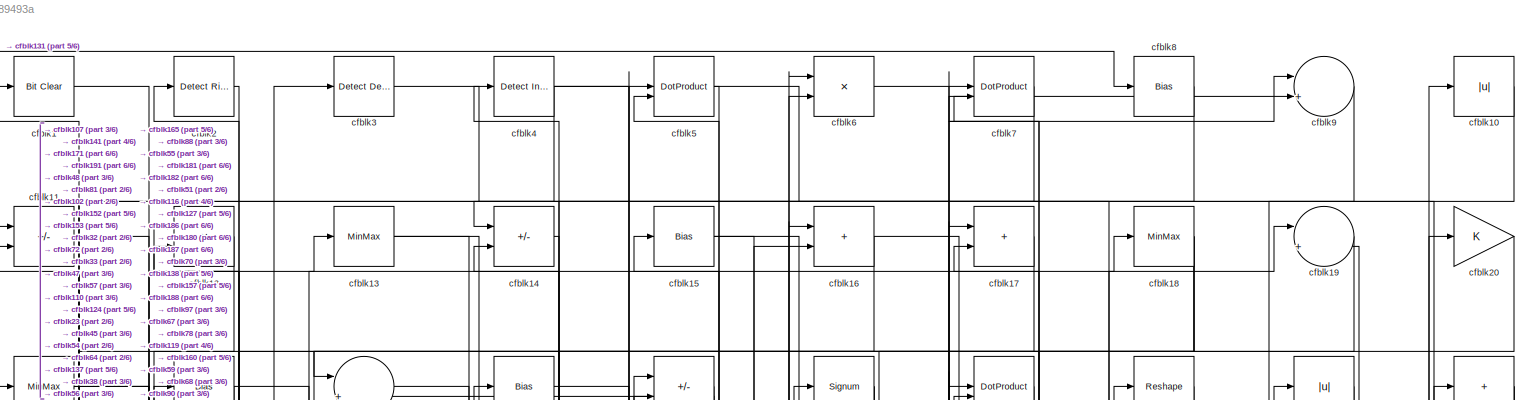
[diagram: root canvas - part 1/6, full width, top band]
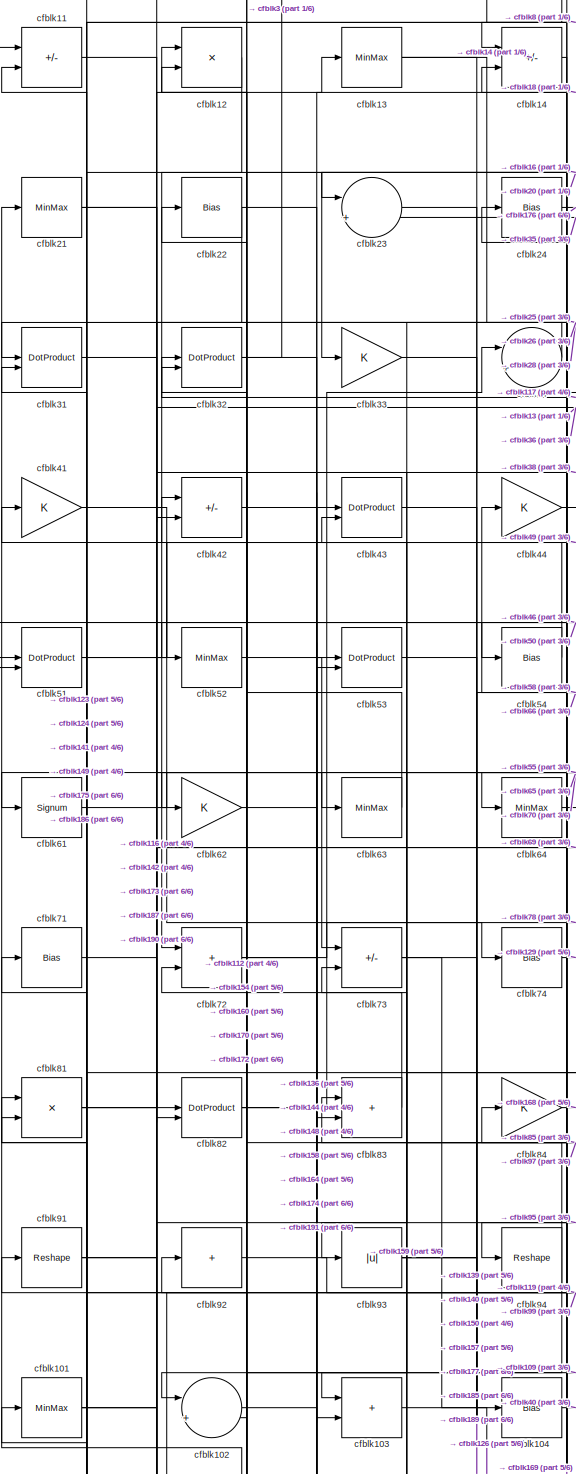
[diagram: root canvas - part 2/6, top left region]
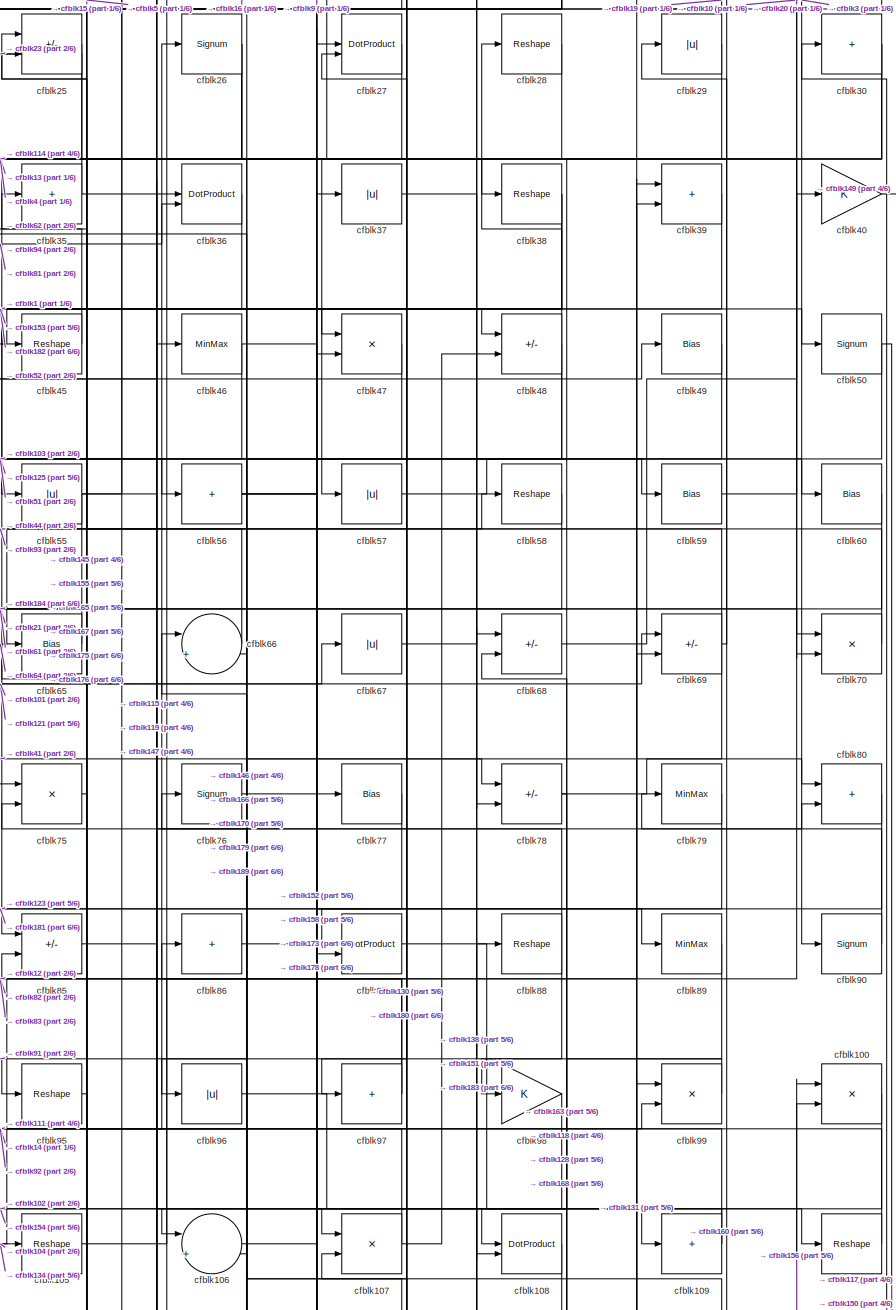
[diagram: root canvas - part 3/6, top right region]
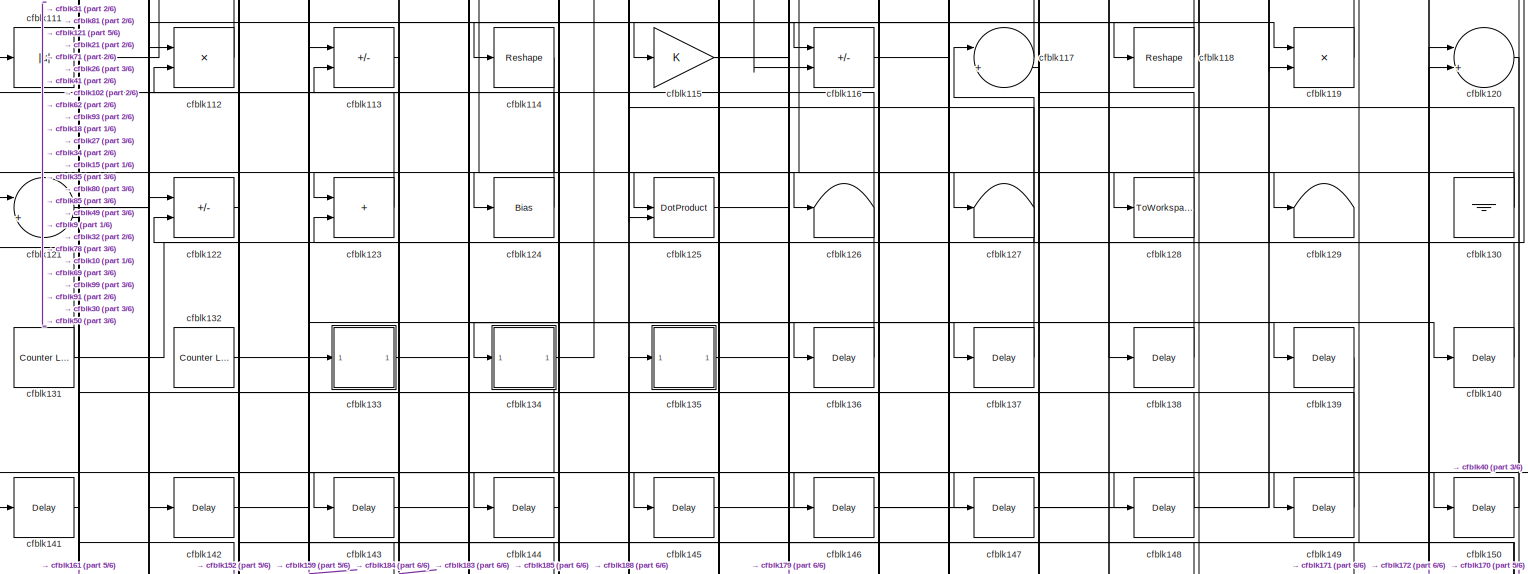
[diagram: root canvas - part 4/6, full width, middle band]
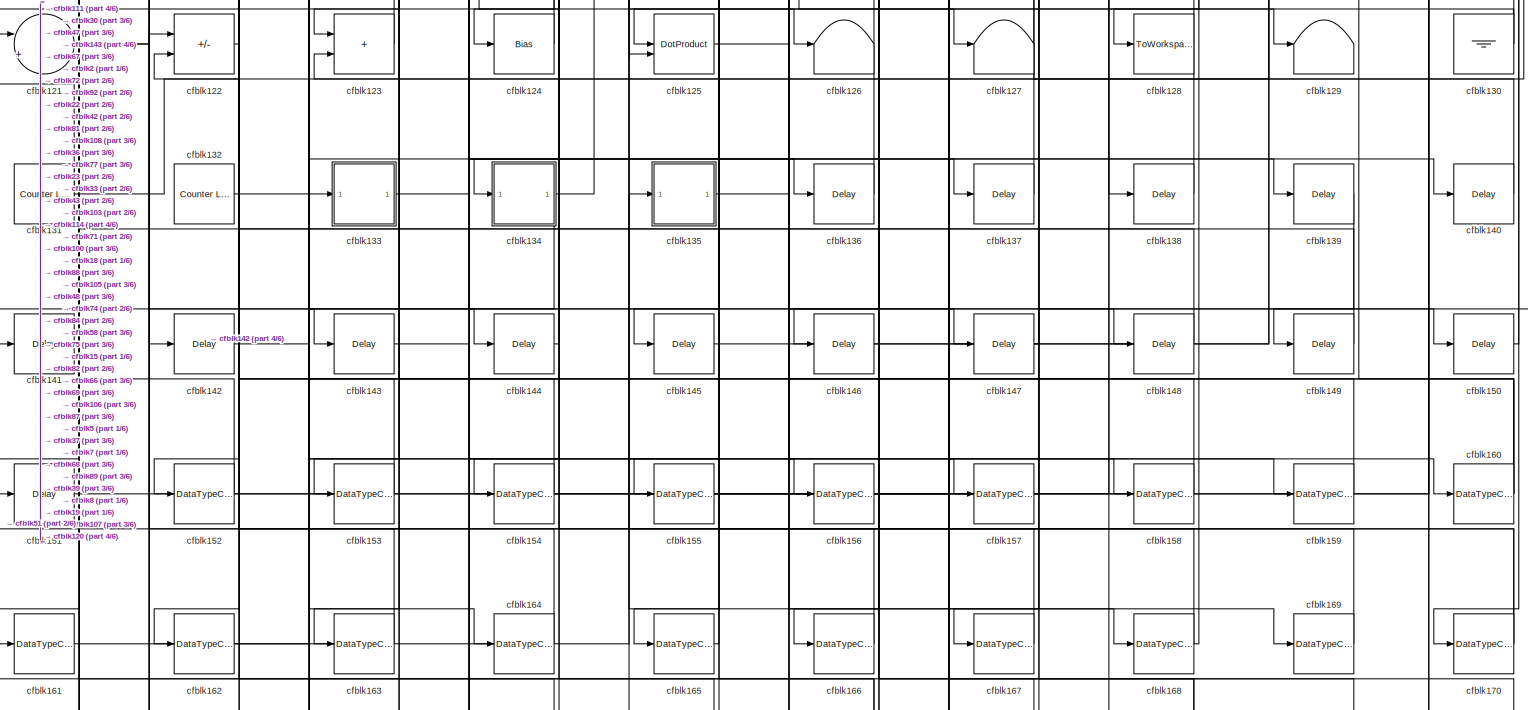
[diagram: root canvas - part 5/6, full width, bottom band]
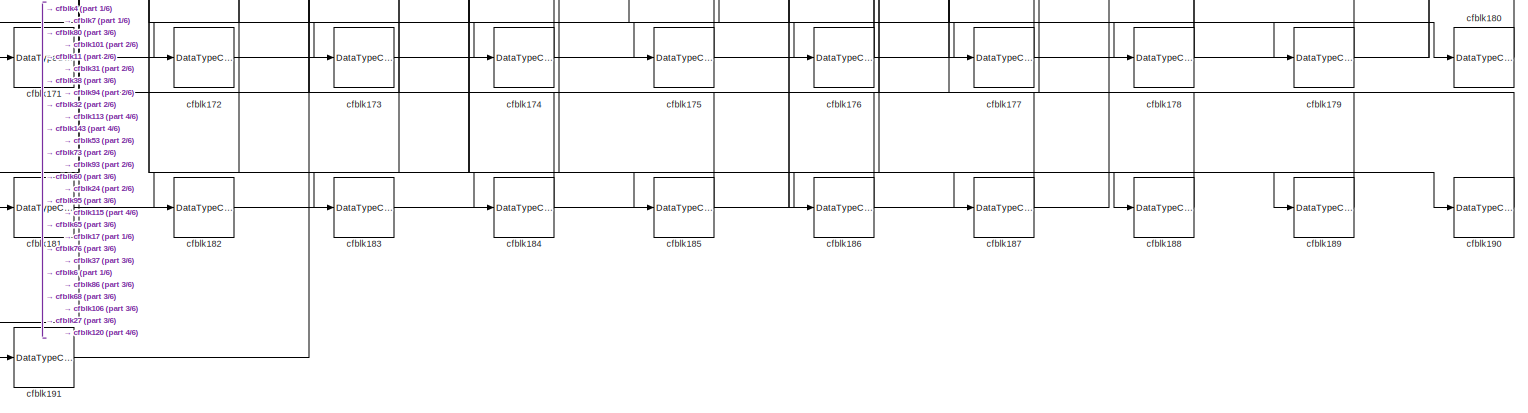
[diagram: root canvas - part 6/6, full width, bottom band]
MODEL slx_45f1ad89493a
KIND model
CONFIG AbsTol = auto
CONFIG EnableMultiTasking = off
CONFIG FixedStep = auto
CONFIG MaxStep = auto
CONFIG MinStep = auto
CONFIG RelTol = 1e-3
CONFIG SampleTimeConstraint = Unconstrained
CONFIG SolverName = VariableStepAuto
CONFIG StartTime = 0.0
CONFIG StopTime = 10.0
BLOCK [Reference] cfblk1  REF=simulink/Logic and Bit
Operations/Bit Clear
  LibrarySourceBlock = hdlsllib/Logic and Bit\nOperations/Bit Clear
  SourceBlock = simulink/Logic and Bit\nOperations/Bit Clear
  SourceType = Bit Clear
BLOCK [Abs] cfblk10
  SaturateOnIntegerOverflow = off
BLOCK [Product] cfblk100
  Inputs = */
  RndMeth = Zero
  SaturateOnIntegerOverflow = on
BLOCK [MinMax] cfblk101
BLOCK [Sum] cfblk102
  Inputs = |++
BLOCK [Sum] cfblk103
  IconShape = rectangular
BLOCK [Bias] cfblk104
  Bias = 0.0
  SaturateOnIntegerOverflow = off
BLOCK [Reshape] cfblk105
BLOCK [Sum] cfblk106
  Inputs = |++
BLOCK [Product] cfblk107
  Inputs = */
  RndMeth = Zero
  SaturateOnIntegerOverflow = on
BLOCK [DotProduct] cfblk108
  OutDataTypeStr = Inherit: Inherit via internal rule
BLOCK [Sum] cfblk109
  IconShape = rectangular
  Inputs = +
BLOCK [Sum] cfblk11
  IconShape = rectangular
  Inputs = +-
BLOCK [Reshape] cfblk110
BLOCK [Abs] cfblk111
  SaturateOnIntegerOverflow = off
BLOCK [Product] cfblk112
  Inputs = */
  RndMeth = Zero
  SaturateOnIntegerOverflow = on
BLOCK [Sum] cfblk113
  IconShape = rectangular
  Inputs = +-
BLOCK [Reshape] cfblk114
BLOCK [Gain] cfblk115
BLOCK [Sum] cfblk116
  IconShape = rectangular
  Inputs = +-
BLOCK [Sum] cfblk117
  Inputs = |++
BLOCK [Reshape] cfblk118
BLOCK [Product] cfblk119
  Inputs = */
  RndMeth = Zero
  SaturateOnIntegerOverflow = on
BLOCK [Product] cfblk12
  Inputs = */
  RndMeth = Zero
  SaturateOnIntegerOverflow = on
BLOCK [Sum] cfblk120
  Inputs = |++
BLOCK [Sum] cfblk121
  Inputs = |++
BLOCK [Sum] cfblk122
  IconShape = rectangular
  Inputs = +-
BLOCK [Sum] cfblk123
  IconShape = rectangular
BLOCK [Bias] cfblk124
  Bias = 0.0
  SaturateOnIntegerOverflow = off
BLOCK [DotProduct] cfblk125
  OutDataTypeStr = Inherit: Inherit via internal rule
BLOCK [Terminator] cfblk126
BLOCK [Terminator] cfblk127
BLOCK [ToWorkspace] cfblk128
  MaxDataPoints = inf
  SampleTime = -1
  SaveFormat = Timeseries
  VariableName = simout
BLOCK [Terminator] cfblk129
BLOCK [MinMax] cfblk13
BLOCK [Ground] cfblk130
BLOCK [Reference] cfblk131  REF=hdlsllib/Sources/Counter
Limited
  SourceBlock = hdlsllib/Sources/Counter\nLimited
  SourceType = Counter Limited
BLOCK [Reference] cfblk132  REF=hdlsllib/Sources/Counter
Limited
  SourceBlock = hdlsllib/Sources/Counter\nLimited
  SourceType = Counter Limited
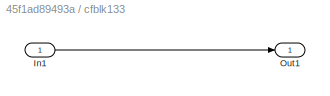
BLOCK [SubSystem] cfblk133
  LibrarySourceBlock = hdlsllib/Ports &\nSubsystems/Subsystem
BLOCK [Inport] cfblk133/In1
BLOCK [Outport] cfblk133/Out1
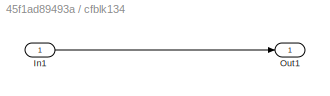
BLOCK [SubSystem] cfblk134
  LibrarySourceBlock = hdlsllib/Ports &\nSubsystems/Subsystem
BLOCK [Inport] cfblk134/In1
BLOCK [Outport] cfblk134/Out1
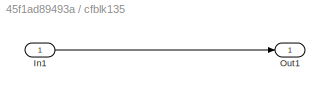
BLOCK [SubSystem] cfblk135
  LibrarySourceBlock = hdlsllib/Ports &\nSubsystems/Subsystem
BLOCK [Inport] cfblk135/In1
BLOCK [Outport] cfblk135/Out1
BLOCK [Delay] cfblk136
  InputPortMap = u0
  SampleTime = 1
BLOCK [Delay] cfblk137
  InputPortMap = u0
  SampleTime = 1
BLOCK [Delay] cfblk138
  InputPortMap = u0
  SampleTime = 1
BLOCK [Delay] cfblk139
  InputPortMap = u0
  SampleTime = 1
BLOCK [Sum] cfblk14
  IconShape = rectangular
  Inputs = +-
BLOCK [Delay] cfblk140
  InputPortMap = u0
  SampleTime = 1
BLOCK [Delay] cfblk141
  InputPortMap = u0
  SampleTime = 1
BLOCK [Delay] cfblk142
  InputPortMap = u0
  SampleTime = 1
BLOCK [Delay] cfblk143
  InputPortMap = u0
  SampleTime = 1
BLOCK [Delay] cfblk144
  InputPortMap = u0
  SampleTime = 1
BLOCK [Delay] cfblk145
  InputPortMap = u0
  SampleTime = 1
BLOCK [Delay] cfblk146
  InputPortMap = u0
  SampleTime = 1
BLOCK [Delay] cfblk147
  InputPortMap = u0
  SampleTime = 1
BLOCK [Delay] cfblk148
  InputPortMap = u0
  SampleTime = 1
BLOCK [Delay] cfblk149
  InputPortMap = u0
  SampleTime = 1
BLOCK [Bias] cfblk15
  Bias = 0.0
  SaturateOnIntegerOverflow = off
BLOCK [Delay] cfblk150
  InputPortMap = u0
  SampleTime = 1
BLOCK [Delay] cfblk151
  InputPortMap = u0
  SampleTime = 1
BLOCK [DataTypeConversion] cfblk152
  RndMeth = Floor
  SaturateOnIntegerOverflow = off
BLOCK [DataTypeConversion] cfblk153
  OutDataTypeStr = uint8
  RndMeth = Floor
  SaturateOnIntegerOverflow = off
BLOCK [DataTypeConversion] cfblk154
  RndMeth = Floor
  SaturateOnIntegerOverflow = off
BLOCK [DataTypeConversion] cfblk155
  OutDataTypeStr = uint8
  RndMeth = Floor
  SaturateOnIntegerOverflow = off
BLOCK [DataTypeConversion] cfblk156
  OutDataTypeStr = uint8
  RndMeth = Floor
  SaturateOnIntegerOverflow = off
BLOCK [DataTypeConversion] cfblk157
  OutDataTypeStr = uint8
  RndMeth = Floor
  SaturateOnIntegerOverflow = off
BLOCK [DataTypeConversion] cfblk158
  OutDataTypeStr = uint8
  RndMeth = Floor
  SaturateOnIntegerOverflow = off
BLOCK [DataTypeConversion] cfblk159
  OutDataTypeStr = uint8
  RndMeth = Floor
  SaturateOnIntegerOverflow = off
BLOCK [Sum] cfblk16
  IconShape = rectangular
BLOCK [DataTypeConversion] cfblk160
  RndMeth = Floor
  SaturateOnIntegerOverflow = off
BLOCK [DataTypeConversion] cfblk161
  OutDataTypeStr = uint8
  RndMeth = Floor
  SaturateOnIntegerOverflow = off
BLOCK [DataTypeConversion] cfblk162
  OutDataTypeStr = uint8
  RndMeth = Floor
  SaturateOnIntegerOverflow = off
BLOCK [DataTypeConversion] cfblk163
  OutDataTypeStr = uint8
  RndMeth = Floor
  SaturateOnIntegerOverflow = off
BLOCK [DataTypeConversion] cfblk164
  OutDataTypeStr = uint8
  RndMeth = Floor
  SaturateOnIntegerOverflow = off
BLOCK [DataTypeConversion] cfblk165
  OutDataTypeStr = uint8
  RndMeth = Floor
  SaturateOnIntegerOverflow = off
BLOCK [DataTypeConversion] cfblk166
  OutDataTypeStr = uint8
  RndMeth = Floor
  SaturateOnIntegerOverflow = off
BLOCK [DataTypeConversion] cfblk167
  OutDataTypeStr = uint8
  RndMeth = Floor
  SaturateOnIntegerOverflow = off
BLOCK [DataTypeConversion] cfblk168
  RndMeth = Floor
  SaturateOnIntegerOverflow = off
BLOCK [DataTypeConversion] cfblk169
  OutDataTypeStr = uint8
  RndMeth = Floor
  SaturateOnIntegerOverflow = off
BLOCK [Sum] cfblk17
  IconShape = rectangular
BLOCK [DataTypeConversion] cfblk170
  RndMeth = Floor
  SaturateOnIntegerOverflow = off
BLOCK [DataTypeConversion] cfblk171
  OutDataTypeStr = uint8
  RndMeth = Floor
  SaturateOnIntegerOverflow = off
BLOCK [DataTypeConversion] cfblk172
  OutDataTypeStr = uint8
  RndMeth = Floor
  SaturateOnIntegerOverflow = off
BLOCK [DataTypeConversion] cfblk173
  OutDataTypeStr = uint8
  RndMeth = Floor
  SaturateOnIntegerOverflow = off
BLOCK [DataTypeConversion] cfblk174
  OutDataTypeStr = uint8
  RndMeth = Floor
  SaturateOnIntegerOverflow = off
BLOCK [DataTypeConversion] cfblk175
  OutDataTypeStr = uint8
  RndMeth = Floor
  SaturateOnIntegerOverflow = off
BLOCK [DataTypeConversion] cfblk176
  RndMeth = Floor
  SaturateOnIntegerOverflow = off
BLOCK [DataTypeConversion] cfblk177
  OutDataTypeStr = uint8
  RndMeth = Floor
  SaturateOnIntegerOverflow = off
BLOCK [DataTypeConversion] cfblk178
  RndMeth = Floor
  SaturateOnIntegerOverflow = off
BLOCK [DataTypeConversion] cfblk179
  OutDataTypeStr = uint8
  RndMeth = Floor
  SaturateOnIntegerOverflow = off
BLOCK [MinMax] cfblk18
BLOCK [DataTypeConversion] cfblk180
  OutDataTypeStr = uint8
  RndMeth = Floor
  SaturateOnIntegerOverflow = off
BLOCK [DataTypeConversion] cfblk181
  OutDataTypeStr = uint8
  RndMeth = Floor
  SaturateOnIntegerOverflow = off
BLOCK [DataTypeConversion] cfblk182
  OutDataTypeStr = uint8
  RndMeth = Floor
  SaturateOnIntegerOverflow = off
BLOCK [DataTypeConversion] cfblk183
  OutDataTypeStr = uint8
  RndMeth = Floor
  SaturateOnIntegerOverflow = off
BLOCK [DataTypeConversion] cfblk184
  OutDataTypeStr = uint8
  RndMeth = Floor
  SaturateOnIntegerOverflow = off
BLOCK [DataTypeConversion] cfblk185
  OutDataTypeStr = uint8
  RndMeth = Floor
  SaturateOnIntegerOverflow = off
BLOCK [DataTypeConversion] cfblk186
  OutDataTypeStr = uint8
  RndMeth = Floor
  SaturateOnIntegerOverflow = off
BLOCK [DataTypeConversion] cfblk187
  OutDataTypeStr = uint8
  RndMeth = Floor
  SaturateOnIntegerOverflow = off
BLOCK [DataTypeConversion] cfblk188
  OutDataTypeStr = uint8
  RndMeth = Floor
  SaturateOnIntegerOverflow = off
BLOCK [DataTypeConversion] cfblk189
  OutDataTypeStr = uint8
  RndMeth = Floor
  SaturateOnIntegerOverflow = off
BLOCK [Sum] cfblk19
  Inputs = |++
BLOCK [DataTypeConversion] cfblk190
  OutDataTypeStr = uint8
  RndMeth = Floor
  SaturateOnIntegerOverflow = off
BLOCK [DataTypeConversion] cfblk191
  OutDataTypeStr = uint8
  RndMeth = Floor
  SaturateOnIntegerOverflow = off
BLOCK [Reference] cfblk2  REF=hdlsllib/Logic and Bit
Operations/Detect Rise
Positive
  SourceBlock = hdlsllib/Logic and Bit\nOperations/Detect Rise\nPositive
  SourceType = Detect Rise Positive
BLOCK [Gain] cfblk20
BLOCK [MinMax] cfblk21
BLOCK [Bias] cfblk22
  Bias = 0.0
  SaturateOnIntegerOverflow = off
BLOCK [Sum] cfblk23
  Inputs = |++
BLOCK [Bias] cfblk24
  Bias = 0.0
  SaturateOnIntegerOverflow = off
BLOCK [Sum] cfblk25
  IconShape = rectangular
  Inputs = +-
BLOCK [Signum] cfblk26
BLOCK [DotProduct] cfblk27
  OutDataTypeStr = Inherit: Inherit via internal rule
BLOCK [Reshape] cfblk28
BLOCK [Abs] cfblk29
  SaturateOnIntegerOverflow = off
BLOCK [Reference] cfblk3  REF=simulink/Logic and Bit
Operations/Detect
Decrease
  LibrarySourceBlock = hdlsllib/Logic and Bit\nOperations/Detect\nDecrease
  SourceBlock = simulink/Logic and Bit\nOperations/Detect\nDecrease
  SourceType = Detect Decrease
BLOCK [Sum] cfblk30
  IconShape = rectangular
  Inputs = +
BLOCK [DotProduct] cfblk31
  OutDataTypeStr = Inherit: Inherit via internal rule
BLOCK [DotProduct] cfblk32
  OutDataTypeStr = Inherit: Inherit via internal rule
BLOCK [Gain] cfblk33
BLOCK [Sum] cfblk34
  Inputs = |++
BLOCK [Sum] cfblk35
  IconShape = rectangular
  Inputs = +
BLOCK [DotProduct] cfblk36
  OutDataTypeStr = Inherit: Inherit via internal rule
BLOCK [Abs] cfblk37
  SaturateOnIntegerOverflow = off
BLOCK [Reshape] cfblk38
BLOCK [Sum] cfblk39
  IconShape = rectangular
BLOCK [Reference] cfblk4  REF=simulink/Logic and Bit
Operations/Detect
Increase
  LibrarySourceBlock = hdlsllib/Logic and Bit\nOperations/Detect\nIncrease
  SourceBlock = simulink/Logic and Bit\nOperations/Detect\nIncrease
  SourceType = Detect Increase
BLOCK [Gain] cfblk40
BLOCK [Gain] cfblk41
BLOCK [Sum] cfblk42
  IconShape = rectangular
  Inputs = +-
BLOCK [DotProduct] cfblk43
  OutDataTypeStr = Inherit: Inherit via internal rule
BLOCK [Gain] cfblk44
BLOCK [Reshape] cfblk45
BLOCK [MinMax] cfblk46
BLOCK [Product] cfblk47
  Inputs = */
  RndMeth = Zero
  SaturateOnIntegerOverflow = on
BLOCK [Sum] cfblk48
  IconShape = rectangular
  Inputs = +-
BLOCK [Bias] cfblk49
  Bias = 0.0
  SaturateOnIntegerOverflow = off
BLOCK [DotProduct] cfblk5
  OutDataTypeStr = Inherit: Inherit via internal rule
BLOCK [Signum] cfblk50
BLOCK [DotProduct] cfblk51
  OutDataTypeStr = Inherit: Inherit via internal rule
BLOCK [MinMax] cfblk52
BLOCK [DotProduct] cfblk53
  OutDataTypeStr = Inherit: Inherit via internal rule
BLOCK [Bias] cfblk54
  Bias = 0.0
  SaturateOnIntegerOverflow = off
BLOCK [Abs] cfblk55
  SaturateOnIntegerOverflow = off
BLOCK [Sum] cfblk56
  IconShape = rectangular
  Inputs = +
BLOCK [Abs] cfblk57
  SaturateOnIntegerOverflow = off
BLOCK [Reshape] cfblk58
BLOCK [Bias] cfblk59
  Bias = 0.0
  SaturateOnIntegerOverflow = off
BLOCK [Product] cfblk6
  Inputs = */
  RndMeth = Zero
  SaturateOnIntegerOverflow = on
BLOCK [Bias] cfblk60
  Bias = 0.0
  SaturateOnIntegerOverflow = off
BLOCK [Signum] cfblk61
BLOCK [Gain] cfblk62
BLOCK [MinMax] cfblk63
BLOCK [MinMax] cfblk64
BLOCK [Bias] cfblk65
  Bias = 0.0
  SaturateOnIntegerOverflow = off
BLOCK [Sum] cfblk66
  Inputs = |++
BLOCK [Abs] cfblk67
  SaturateOnIntegerOverflow = off
BLOCK [Sum] cfblk68
  IconShape = rectangular
  Inputs = +-
BLOCK [Sum] cfblk69
  IconShape = rectangular
  Inputs = +-
BLOCK [DotProduct] cfblk7
  OutDataTypeStr = Inherit: Inherit via internal rule
BLOCK [Product] cfblk70
  Inputs = */
  RndMeth = Zero
  SaturateOnIntegerOverflow = on
BLOCK [Bias] cfblk71
  Bias = 0.0
  SaturateOnIntegerOverflow = off
BLOCK [Sum] cfblk72
  IconShape = rectangular
BLOCK [Sum] cfblk73
  IconShape = rectangular
  Inputs = +-
BLOCK [Bias] cfblk74
  Bias = 0.0
  SaturateOnIntegerOverflow = off
BLOCK [Product] cfblk75
  Inputs = */
  RndMeth = Zero
  SaturateOnIntegerOverflow = on
BLOCK [Signum] cfblk76
BLOCK [Bias] cfblk77
  Bias = 0.0
  SaturateOnIntegerOverflow = off
BLOCK [Sum] cfblk78
  IconShape = rectangular
  Inputs = +-
BLOCK [MinMax] cfblk79
BLOCK [Bias] cfblk8
  Bias = 0.0
  SaturateOnIntegerOverflow = off
BLOCK [Sum] cfblk80
  IconShape = rectangular
BLOCK [Product] cfblk81
  Inputs = */
  RndMeth = Zero
  SaturateOnIntegerOverflow = on
BLOCK [DotProduct] cfblk82
  OutDataTypeStr = Inherit: Inherit via internal rule
BLOCK [Sum] cfblk83
  IconShape = rectangular
BLOCK [Gain] cfblk84
BLOCK [Sum] cfblk85
  IconShape = rectangular
  Inputs = +-
BLOCK [Sum] cfblk86
  IconShape = rectangular
  Inputs = +
BLOCK [DotProduct] cfblk87
  OutDataTypeStr = Inherit: Inherit via internal rule
BLOCK [Reshape] cfblk88
BLOCK [MinMax] cfblk89
BLOCK [Sum] cfblk9
  Inputs = |++
BLOCK [Signum] cfblk90
BLOCK [Reshape] cfblk91
BLOCK [Sum] cfblk92
  IconShape = rectangular
  Inputs = +
BLOCK [Abs] cfblk93
  SaturateOnIntegerOverflow = off
BLOCK [Reshape] cfblk94
BLOCK [Reshape] cfblk95
BLOCK [Abs] cfblk96
  SaturateOnIntegerOverflow = off
BLOCK [Sum] cfblk97
  IconShape = rectangular
  Inputs = +
BLOCK [Gain] cfblk98
BLOCK [Product] cfblk99
  Inputs = */
  RndMeth = Zero
  SaturateOnIntegerOverflow = on
LINE cfblk100:1 -> cfblk154:1
NET cfblk101:1 -> cfblk190:1, cfblk69:1
LINE cfblk102:1 -> cfblk148:1
LINE cfblk103:1 -> cfblk126:1
LINE cfblk104:1 -> cfblk40:1
LINE cfblk105:1 -> cfblk39:1
LINE cfblk106:1 -> cfblk158:1
NET cfblk107:1 -> cfblk1:1, cfblk48:2
LINE cfblk108:1 -> cfblk163:1
NET cfblk109:1 -> cfblk102:1, cfblk25:1
LINE cfblk10:1 -> cfblk119:2
LINE cfblk110:1 -> cfblk14:2
LINE cfblk111:1 -> cfblk26:1
LINE cfblk112:1 -> cfblk41:1
LINE cfblk113:1 -> cfblk183:1
LINE cfblk114:1 -> cfblk161:1
NET cfblk115:1 -> cfblk179:1, cfblk80:2
LINE cfblk116:1 -> cfblk9:1
LINE cfblk117:1 -> cfblk32:1
LINE cfblk118:1 -> cfblk115:1
LINE cfblk119:1 -> cfblk91:1
LINE cfblk11:1 -> cfblk173:1
LINE cfblk120:1 -> cfblk170:1
NET cfblk121:1 -> cfblk143:1, cfblk67:1
LINE cfblk122:1 -> cfblk162:1
LINE cfblk123:1 -> cfblk81:1
LINE cfblk124:1 -> cfblk71:1
LINE cfblk125:1 -> cfblk169:1
LINE cfblk12:1 -> cfblk72:1
NET cfblk130:1 -> cfblk107:2, cfblk125:1
NET cfblk131:1 -> cfblk39:2, cfblk8:1
LINE cfblk132:1 -> cfblk156:1
LINE cfblk133/In1:1 -> cfblk133/Out1:1
LINE cfblk133:1 -> cfblk137:1
LINE cfblk134/In1:1 -> cfblk134/Out1:1
NET cfblk134:1 -> cfblk105:1, cfblk151:1
LINE cfblk135/In1:1 -> cfblk135/Out1:1
LINE cfblk135:1 -> cfblk160:1
LINE cfblk136:1 -> cfblk82:1
LINE cfblk137:1 -> cfblk5:1
LINE cfblk138:1 -> cfblk7:1
LINE cfblk139:1 -> cfblk167:1
NET cfblk13:1 -> cfblk47:1, cfblk57:1
LINE cfblk140:1 -> cfblk123:2
LINE cfblk141:1 -> cfblk81:2
LINE cfblk142:1 -> cfblk159:1
LINE cfblk143:1 -> cfblk188:1
LINE cfblk144:1 -> cfblk34:2
LINE cfblk145:1 -> cfblk69:2
LINE cfblk146:1 -> cfblk99:1
LINE cfblk147:1 -> cfblk117:2
LINE cfblk148:1 -> cfblk112:2
LINE cfblk149:1 -> cfblk31:2
LINE cfblk14:1 -> cfblk64:1
LINE cfblk150:1 -> cfblk30:1
LINE cfblk151:1 -> cfblk88:1
NET cfblk152:1 -> cfblk111:1, cfblk47:2
LINE cfblk153:1 -> cfblk2:1
NET cfblk154:1 -> cfblk72:2, cfblk87:2
LINE cfblk155:1 -> cfblk100:1
LINE cfblk156:1 -> cfblk100:2
LINE cfblk157:1 -> cfblk7:2
LINE cfblk158:1 -> cfblk43:1
LINE cfblk159:1 -> cfblk43:2
NET cfblk15:1 -> cfblk116:2, cfblk127:1
NET cfblk160:1 -> cfblk19:2, cfblk36:1, cfblk92:1
LINE cfblk161:1 -> cfblk135:1
LINE cfblk162:1 -> cfblk133:1
LINE cfblk163:1 -> cfblk122:1
LINE cfblk164:1 -> cfblk122:2
LINE cfblk165:1 -> cfblk5:2
LINE cfblk166:1 -> cfblk75:1
LINE cfblk167:1 -> cfblk75:2
NET cfblk168:1 -> cfblk51:1, cfblk68:2
LINE cfblk169:1 -> cfblk84:1
NET cfblk16:1 -> cfblk102:2, cfblk70:1
NET cfblk170:1 -> cfblk22:1, cfblk66:1
LINE cfblk171:1 -> cfblk120:1
LINE cfblk172:1 -> cfblk120:2
LINE cfblk173:1 -> cfblk37:1
LINE cfblk174:1 -> cfblk11:1
LINE cfblk175:1 -> cfblk11:2
NET cfblk176:1 -> cfblk32:2, cfblk65:1
LINE cfblk177:1 -> cfblk24:1
NET cfblk178:1 -> cfblk106:2, cfblk27:1
LINE cfblk179:1 -> cfblk86:1
LINE cfblk17:1 -> cfblk186:1
LINE cfblk180:1 -> cfblk27:2
LINE cfblk181:1 -> cfblk6:1
LINE cfblk182:1 -> cfblk6:2
LINE cfblk183:1 -> cfblk68:1
LINE cfblk184:1 -> cfblk113:1
LINE cfblk185:1 -> cfblk113:2
LINE cfblk186:1 -> cfblk101:1
LINE cfblk187:1 -> cfblk17:1
LINE cfblk188:1 -> cfblk17:2
LINE cfblk189:1 -> cfblk76:1
NET cfblk18:1 -> cfblk124:1, cfblk141:1, cfblk23:1
LINE cfblk190:1 -> cfblk53:1
LINE cfblk191:1 -> cfblk53:2
LINE cfblk19:1 -> cfblk97:1
LINE cfblk1:1 -> cfblk48:1
LINE cfblk20:1 -> cfblk33:1
NET cfblk21:1 -> cfblk116:1, cfblk70:2
NET cfblk22:1 -> cfblk136:1, cfblk42:2
LINE cfblk23:1 -> cfblk140:1
LINE cfblk24:1 -> cfblk176:1
LINE cfblk25:1 -> cfblk94:1
NET cfblk26:1 -> cfblk103:1, cfblk145:1, cfblk62:1
LINE cfblk27:1 -> cfblk114:1
LINE cfblk28:1 -> cfblk82:2
LINE cfblk29:1 -> cfblk108:1
LINE cfblk2:1 -> cfblk152:1
NET cfblk30:1 -> cfblk121:2, cfblk55:1, cfblk96:1
LINE cfblk31:1 -> cfblk187:1
NET cfblk32:1 -> cfblk174:1, cfblk3:1
LINE cfblk33:1 -> cfblk139:1
LINE cfblk34:1 -> cfblk31:1
NET cfblk35:1 -> cfblk147:1, cfblk23:2
LINE cfblk36:1 -> cfblk153:1
LINE cfblk37:1 -> cfblk138:1
NET cfblk38:1 -> cfblk182:1, cfblk52:1, cfblk83:2
LINE cfblk39:1 -> cfblk85:1
LINE cfblk3:1 -> cfblk90:1
LINE cfblk40:1 -> cfblk149:1
LINE cfblk41:1 -> cfblk78:1
LINE cfblk42:1 -> cfblk164:1
LINE cfblk43:1 -> cfblk157:1
LINE cfblk44:1 -> cfblk50:1
LINE cfblk45:1 -> cfblk4:1
NET cfblk46:1 -> cfblk51:2, cfblk77:1
LINE cfblk47:1 -> cfblk121:1
NET cfblk48:1 -> cfblk125:2, cfblk28:1, cfblk66:2
LINE cfblk49:1 -> cfblk146:1
NET cfblk4:1 -> cfblk191:1, cfblk38:1, cfblk56:1
NET cfblk50:1 -> cfblk103:2, cfblk117:1
NET cfblk51:1 -> cfblk16:1, cfblk49:1
LINE cfblk52:1 -> cfblk73:1
LINE cfblk53:1 -> cfblk189:1
LINE cfblk54:1 -> cfblk21:1
NET cfblk55:1 -> cfblk107:1, cfblk16:2, cfblk93:1
NET cfblk56:1 -> cfblk108:2, cfblk59:1, cfblk9:2
LINE cfblk57:1 -> cfblk60:1
LINE cfblk58:1 -> cfblk155:1
LINE cfblk59:1 -> cfblk10:1
NET cfblk5:1 -> cfblk45:1, cfblk78:2
LINE cfblk60:1 -> cfblk184:1
LINE cfblk61:1 -> cfblk63:1
LINE cfblk62:1 -> cfblk144:1
LINE cfblk63:1 -> cfblk12:1
LINE cfblk64:1 -> cfblk46:1
LINE cfblk65:1 -> cfblk61:1
LINE cfblk66:1 -> cfblk44:1
LINE cfblk67:1 -> cfblk19:1
LINE cfblk68:1 -> cfblk20:1
NET cfblk69:1 -> cfblk166:1, cfblk25:2, cfblk29:1
LINE cfblk6:1 -> cfblk180:1
LINE cfblk70:1 -> cfblk35:1
LINE cfblk71:1 -> cfblk142:1
NET cfblk72:1 -> cfblk18:1, cfblk74:1
NET cfblk73:1 -> cfblk104:1, cfblk177:1
LINE cfblk74:1 -> cfblk129:1
LINE cfblk75:1 -> cfblk165:1
LINE cfblk76:1 -> cfblk89:1
LINE cfblk77:1 -> cfblk123:1
NET cfblk78:1 -> cfblk118:1, cfblk80:1
LINE cfblk79:1 -> cfblk87:1
LINE cfblk7:1 -> cfblk171:1
LINE cfblk80:1 -> cfblk181:1
NET cfblk81:1 -> cfblk13:1, cfblk36:2
NET cfblk82:1 -> cfblk34:1, cfblk85:2
LINE cfblk83:1 -> cfblk42:1
LINE cfblk84:1 -> cfblk168:1
LINE cfblk85:1 -> cfblk119:1
LINE cfblk86:1 -> cfblk178:1
LINE cfblk87:1 -> cfblk110:1
NET cfblk88:1 -> cfblk134:1, cfblk15:1
LINE cfblk89:1 -> cfblk128:1
LINE cfblk8:1 -> cfblk54:1
LINE cfblk90:1 -> cfblk79:1
NET cfblk91:1 -> cfblk112:1, cfblk95:1
LINE cfblk92:1 -> cfblk99:2
NET cfblk93:1 -> cfblk150:1, cfblk185:1, cfblk58:1
NET cfblk94:1 -> cfblk172:1, cfblk73:2
LINE cfblk95:1 -> cfblk175:1
LINE cfblk96:1 -> cfblk109:1
NET cfblk97:1 -> cfblk12:2, cfblk83:1
LINE cfblk98:1 -> cfblk106:1
LINE cfblk99:1 -> cfblk98:1
LINE cfblk9:1 -> cfblk14:1
note: NET lines group one-source signal fan-out (src -> all destinations, sorted); 1:1 wires keep LINE
